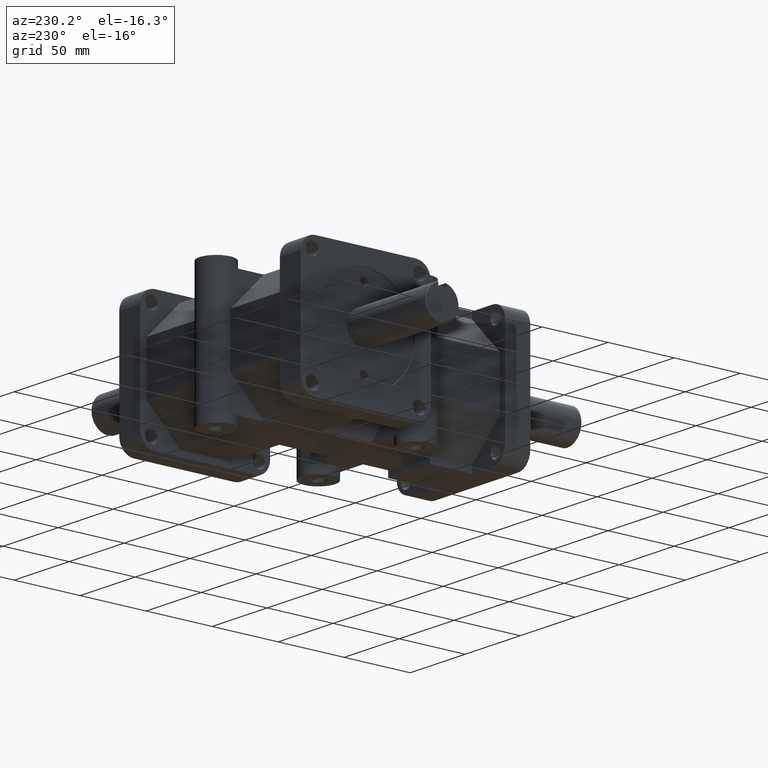
[diagram: clean part render]
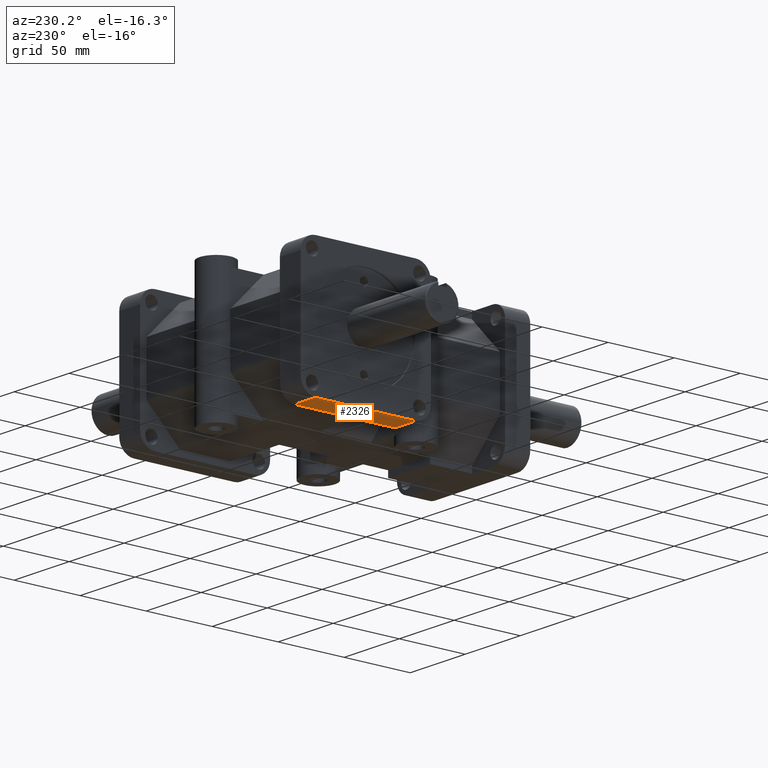
[diagram: same view with one face highlighted and labeled with its STEP entity id]
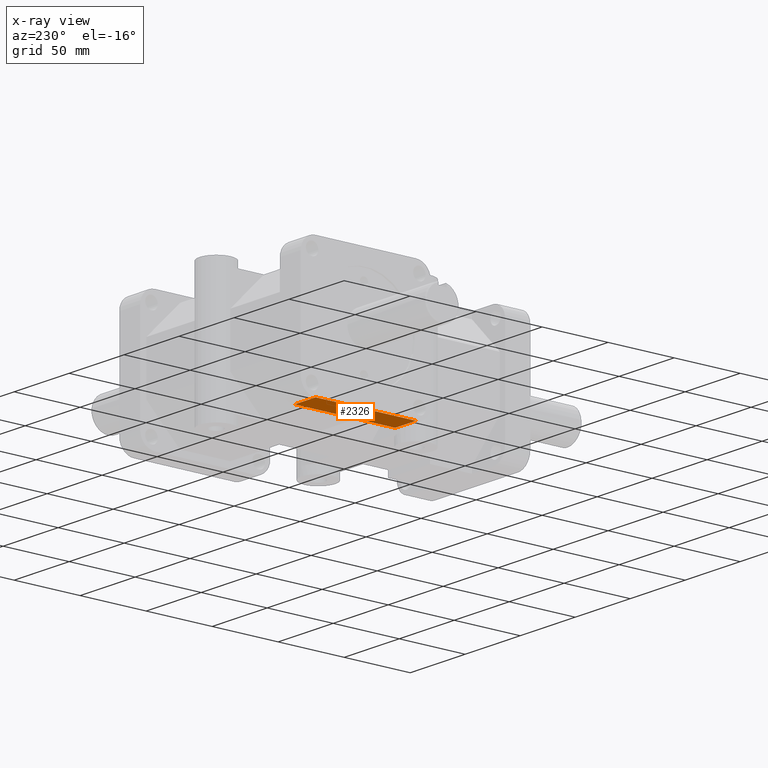
[diagram: x-ray of the same camera — body ghosted, the highlighted face saturated]
A machine part, auxiliary view. The second image highlights one B-rep face of the part: STEP entity #2326.
The next image is the same camera in x-ray: the body ghosted, the highlighted face saturated — about 0% of this face is hidden behind the body in this view.
In plain terms, the highlighted planar face has unit normal (0, 0, 1).
Its self-contained STEP definition (entity closure, byte-faithful):
#182=VERTEX_POINT('',#3265);
#184=VERTEX_POINT('',#3268);
#301=VERTEX_POINT('',#3547);
#304=VERTEX_POINT('',#3557);
#417=VECTOR('',#2676,1.);
#490=VECTOR('',#2913,1.);
#494=VECTOR('',#2925,1.);
#513=VECTOR('',#2962,1.);
#618=LINE('',#3267,#417);
#691=LINE('',#3548,#490);
#695=LINE('',#3560,#494);
#714=LINE('',#3605,#513);
#821=EDGE_CURVE('',#182,#184,#618,.T.);
#954=EDGE_CURVE('',#301,#182,#691,.T.);
#960=EDGE_CURVE('',#184,#304,#695,.T.);
#984=EDGE_CURVE('',#304,#301,#714,.T.);
#1373=ORIENTED_EDGE('',*,*,#954,.F.);
#1374=ORIENTED_EDGE('',*,*,#984,.F.);
#1375=ORIENTED_EDGE('',*,*,#960,.F.);
#1376=ORIENTED_EDGE('',*,*,#821,.F.);
#1890=EDGE_LOOP('',(#1373,#1374,#1375,#1376));
#2125=FACE_BOUND('',#1890,.T.);
#2326=ADVANCED_FACE('',(#2125),#3957,.F.);
#2541=AXIS2_PLACEMENT_3D('',#3604,#2961,$);
#2676=DIRECTION('',(0.,1.,0.));
#2913=DIRECTION('',(1.,0.,0.));
#2925=DIRECTION('',(-1.,0.,0.));
#2961=DIRECTION('',(0.,0.,1.));
#2962=DIRECTION('',(0.,-1.,0.));
#3265=CARTESIAN_POINT('',(-2.5,4.5025,-1.9375));
#3267=CARTESIAN_POINT('',(-2.5,7.75,-1.9375));
#3268=CARTESIAN_POINT('',(-2.5,7.4975,-1.9375));
#3547=CARTESIAN_POINT('',(-3.25,4.5025,-1.9375));
#3548=CARTESIAN_POINT('',(-3.0625,4.5025,-1.9375));
#3557=CARTESIAN_POINT('',(-3.25,7.4975,-1.9375));
#3560=CARTESIAN_POINT('',(-2.6875,7.4975,-1.9375));
#3604=CARTESIAN_POINT('',(-2.875,6.,-1.9375));
#3605=CARTESIAN_POINT('',(-3.25,4.0625,-1.9375));
#3957=PLANE('',#2541);